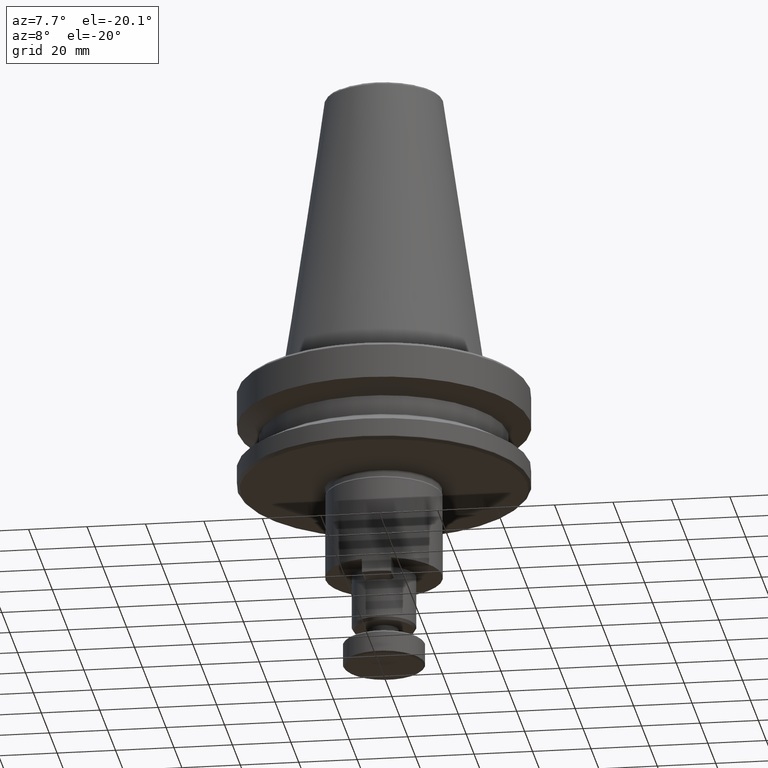
[diagram: clean part render]
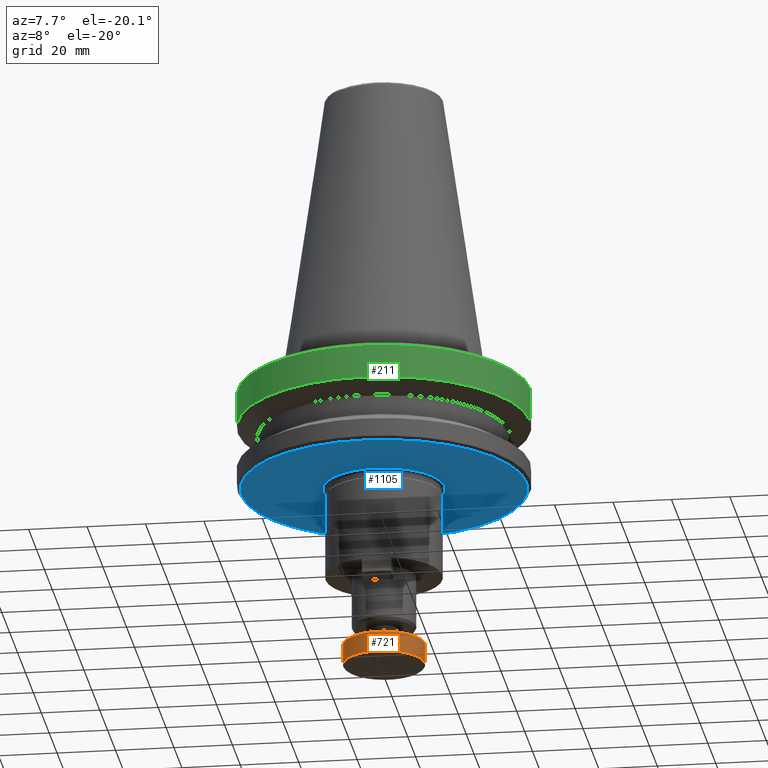
[diagram: same view with three faces highlighted in distinct colors, each labeled with its STEP entity id]
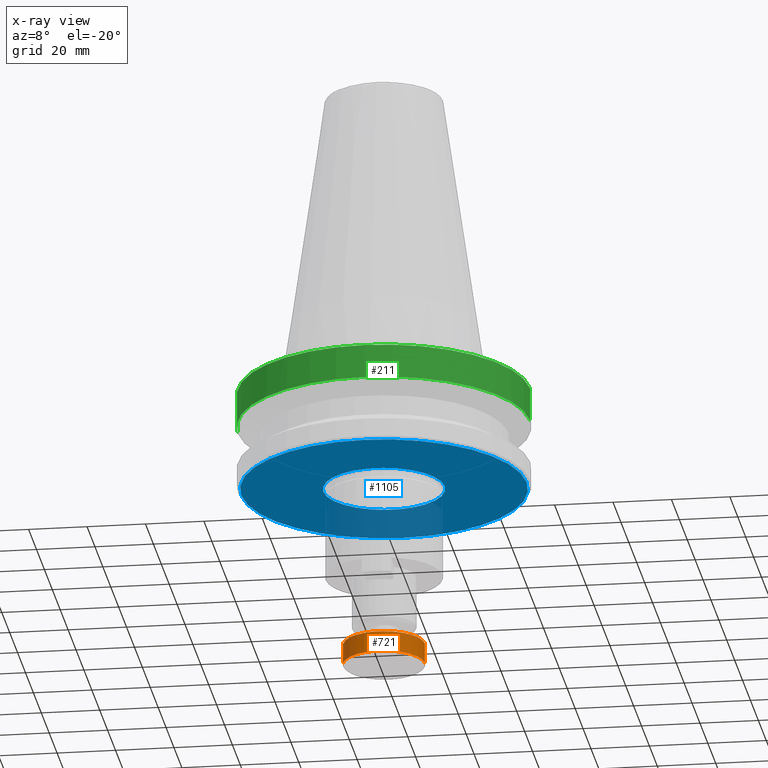
[diagram: x-ray of the same camera — body ghosted, the three highlighted faces saturated]
A machine part, auxiliary view with three faces highlighted in distinct colors.
The next image is the same camera in x-ray (body ghosted, the three faces saturated) — at least one of them is partly hidden behind the body in this view.
Their STEP definitions:

[orange] entity #721 — the highlighted cylindrical surface (partial cylindrical patch) has radius 14 mm, axis along (-0, -0, -1).
#22 = ORIENTED_EDGE ( 'NONE', *, *, #299, .T. ) ;
#195 = ORIENTED_EDGE ( 'NONE', *, *, #615, .F. ) ;
#243 = EDGE_CURVE ( 'NONE', #1642, #2509, #1406, .T. ) ;
#263 = AXIS2_PLACEMENT_3D ( 'NONE', #2195, #756, #975 ) ;
#299 = EDGE_CURVE ( 'NONE', #1814, #2509, #2480, .T. ) ;
#398 = VERTEX_POINT ( 'NONE', #2452 ) ;
#480 = CARTESIAN_POINT ( 'NONE',  ( -13.99999999999998400, 0.0000000000000000000, -101.5000000000000000 ) ) ;
#615 = EDGE_CURVE ( 'NONE', #398, #1642, #2276, .T. ) ;
#721 = ADVANCED_FACE ( 'NONE', ( #2118 ), #2347, .T. ) ;
#756 = DIRECTION ( 'NONE',  ( -0.0000000000000000000, -0.0000000000000000000, -1.000000000000000000 ) ) ;
#861 = DIRECTION ( 'NONE',  ( -1.000000000000000000, 0.0000000000000000000, 0.0000000000000000000 ) ) ;
#869 = DIRECTION ( 'NONE',  ( -0.0000000000000000000, -0.0000000000000000000, -1.000000000000000000 ) ) ;
#930 = DIRECTION ( 'NONE',  ( -0.0000000000000000000, -0.0000000000000000000, -1.000000000000000000 ) ) ;
#975 = DIRECTION ( 'NONE',  ( -1.000000000000000000, 0.0000000000000000000, 0.0000000000000000000 ) ) ;
#1037 = DIRECTION ( 'NONE',  ( -0.0000000000000000000, -0.0000000000000000000, -1.000000000000000000 ) ) ;
#1237 = CARTESIAN_POINT ( 'NONE',  ( 0.0000000000000000000, 0.0000000000000000000, -101.5000000000000000 ) ) ;
#1341 = CIRCLE ( 'NONE', #263, 13.99999999999996400 ) ;
#1365 = DIRECTION ( 'NONE',  ( -0.0000000000000000000, -0.0000000000000000000, -1.000000000000000000 ) ) ;
#1406 = CIRCLE ( 'NONE', #1673, 13.99999999999998400 ) ;
#1529 = AXIS2_PLACEMENT_3D ( 'NONE', #1899, #1365, #1672 ) ;
#1574 = CARTESIAN_POINT ( 'NONE',  ( -13.99999999999996400, 0.0000000000000000000, -94.50000000000000000 ) ) ;
#1642 = VERTEX_POINT ( 'NONE', #2054 ) ;
#1672 = DIRECTION ( 'NONE',  ( -1.000000000000000000, 0.0000000000000000000, 0.0000000000000000000 ) ) ;
#1673 = AXIS2_PLACEMENT_3D ( 'NONE', #1237, #1037, #861 ) ;
#1775 = ORIENTED_EDGE ( 'NONE', *, *, #243, .F. ) ;
#1814 = VERTEX_POINT ( 'NONE', #1574 ) ;
#1815 = CARTESIAN_POINT ( 'NONE',  ( 13.99999999999997500, 1.714505518806291300E-015, -137.0552534186821800 ) ) ;
#1842 = EDGE_CURVE ( 'NONE', #398, #1814, #1341, .T. ) ;
#1899 = CARTESIAN_POINT ( 'NONE',  ( 0.0000000000000000000, 0.0000000000000000000, -137.0552534186821800 ) ) ;
#2054 = CARTESIAN_POINT ( 'NONE',  ( 13.99999999999998200, 1.714505518806292500E-015, -101.5000000000000000 ) ) ;
#2118 = FACE_OUTER_BOUND ( 'NONE', #2275, .T. ) ;
#2142 = VECTOR ( 'NONE', #869, 1000.000000000000000 ) ;
#2195 = CARTESIAN_POINT ( 'NONE',  ( 0.0000000000000000000, 0.0000000000000000000, -94.50000000000000000 ) ) ;
#2220 = ORIENTED_EDGE ( 'NONE', *, *, #1842, .T. ) ;
#2248 = CARTESIAN_POINT ( 'NONE',  ( -13.99999999999997500, 0.0000000000000000000, -137.0552534186821800 ) ) ;
#2275 = EDGE_LOOP ( 'NONE', ( #195, #2220, #22, #1775 ) ) ;
#2276 = LINE ( 'NONE', #1815, #2142 ) ;
#2347 = CYLINDRICAL_SURFACE ( 'NONE', #1529, 13.99999999999997500 ) ;
#2370 = VECTOR ( 'NONE', #930, 1000.000000000000000 ) ;
#2452 = CARTESIAN_POINT ( 'NONE',  ( 13.99999999999996400, 1.714505518806289900E-015, -94.50000000000000000 ) ) ;
#2480 = LINE ( 'NONE', #2248, #2370 ) ;
#2509 = VERTEX_POINT ( 'NONE', #480 ) ;

[blue] entity #1105 — the highlighted planar face has unit normal (0, 0, -1).
#7 = AXIS2_PLACEMENT_3D ( 'NONE', #2450, #261, #1904 ) ;
#74 = VERTEX_POINT ( 'NONE', #2457 ) ;
#163 = CARTESIAN_POINT ( 'NONE',  ( -20.80000000000000400, 1.273632671113247700E-015, -38.00000000000000700 ) ) ;
#261 = DIRECTION ( 'NONE',  ( -0.0000000000000000000, 0.0000000000000000000, 1.000000000000000000 ) ) ;
#382 = EDGE_CURVE ( 'NONE', #839, #1263, #1146, .T. ) ;
#393 = AXIS2_PLACEMENT_3D ( 'NONE', #850, #2420, #577 ) ;
#519 = VERTEX_POINT ( 'NONE', #1840 ) ;
#523 = EDGE_CURVE ( 'NONE', #1263, #839, #1446, .T. ) ;
#577 = DIRECTION ( 'NONE',  ( -1.000000000000000000, 0.0000000000000000000, -0.0000000000000000000 ) ) ;
#720 = CARTESIAN_POINT ( 'NONE',  ( 20.80000000000000400, 3.820898013339743400E-015, -38.00000000000000700 ) ) ;
#839 = VERTEX_POINT ( 'NONE', #720 ) ;
#850 = CARTESIAN_POINT ( 'NONE',  ( 0.0000000000000000000, 5.399440345235984600E-015, -38.00000000000000700 ) ) ;
#903 = AXIS2_PLACEMENT_3D ( 'NONE', #2338, #1514, #1908 ) ;
#909 = ORIENTED_EDGE ( 'NONE', *, *, #1587, .F. ) ;
#933 = EDGE_LOOP ( 'NONE', ( #909, #1189 ) ) ;
#1018 = AXIS2_PLACEMENT_3D ( 'NONE', #2322, #2092, #1809 ) ;
#1105 = ADVANCED_FACE ( 'NONE', ( #2156, #2288 ), #1802, .T. ) ;
#1146 = CIRCLE ( 'NONE', #1891, 20.80000000000000400 ) ;
#1189 = ORIENTED_EDGE ( 'NONE', *, *, #1689, .F. ) ;
#1231 = CARTESIAN_POINT ( 'NONE',  ( 0.0000000000000000000, 1.273632671113247700E-015, -38.00000000000000700 ) ) ;
#1263 = VERTEX_POINT ( 'NONE', #163 ) ;
#1446 = CIRCLE ( 'NONE', #1018, 20.80000000000000400 ) ;
#1514 = DIRECTION ( 'NONE',  ( -0.0000000000000000000, 0.0000000000000000000, 1.000000000000000000 ) ) ;
#1520 = DIRECTION ( 'NONE',  ( -0.0000000000000000000, -0.0000000000000000000, 1.000000000000000000 ) ) ;
#1587 = EDGE_CURVE ( 'NONE', #519, #74, #2106, .T. ) ;
#1613 = ORIENTED_EDGE ( 'NONE', *, *, #382, .T. ) ;
#1689 = EDGE_CURVE ( 'NONE', #74, #519, #2351, .T. ) ;
#1778 = DIRECTION ( 'NONE',  ( -1.000000000000000000, 0.0000000000000000000, 0.0000000000000000000 ) ) ;
#1802 = PLANE ( 'NONE',  #393 ) ;
#1808 = EDGE_LOOP ( 'NONE', ( #2247, #1613 ) ) ;
#1809 = DIRECTION ( 'NONE',  ( -1.000000000000000000, 0.0000000000000000000, 0.0000000000000000000 ) ) ;
#1840 = CARTESIAN_POINT ( 'NONE',  ( 48.83431457505076200, -3.007558472769253000E-015, -38.00000000000000700 ) ) ;
#1891 = AXIS2_PLACEMENT_3D ( 'NONE', #1231, #1520, #1778 ) ;
#1904 = DIRECTION ( 'NONE',  ( 1.000000000000000000, 0.0000000000000000000, 0.0000000000000000000 ) ) ;
#1908 = DIRECTION ( 'NONE',  ( 1.000000000000000000, 0.0000000000000000000, 0.0000000000000000000 ) ) ;
#2092 = DIRECTION ( 'NONE',  ( -0.0000000000000000000, -0.0000000000000000000, 1.000000000000000000 ) ) ;
#2106 = CIRCLE ( 'NONE', #7, 48.83431457505076200 ) ;
#2156 = FACE_BOUND ( 'NONE', #1808, .T. ) ;
#2247 = ORIENTED_EDGE ( 'NONE', *, *, #523, .T. ) ;
#2288 = FACE_OUTER_BOUND ( 'NONE', #933, .T. ) ;
#2322 = CARTESIAN_POINT ( 'NONE',  ( 0.0000000000000000000, 1.273632671113247700E-015, -38.00000000000000700 ) ) ;
#2338 = CARTESIAN_POINT ( 'NONE',  ( 0.0000000000000000000, -3.007558472769253000E-015, -38.00000000000000700 ) ) ;
#2351 = CIRCLE ( 'NONE', #903, 48.83431457505076200 ) ;
#2420 = DIRECTION ( 'NONE',  ( 0.0000000000000000000, 0.0000000000000000000, -1.000000000000000000 ) ) ;
#2450 = CARTESIAN_POINT ( 'NONE',  ( 0.0000000000000000000, -3.007558472769253000E-015, -38.00000000000000700 ) ) ;
#2457 = CARTESIAN_POINT ( 'NONE',  ( -48.83431457505076200, 2.990239351644541500E-015, -38.00000000000000700 ) ) ;

[green] entity #211 — the highlighted cylindrical surface (partial cylindrical patch) has radius 50 mm, axis along (-0, -0, 1).
#117 = ORIENTED_EDGE ( 'NONE', *, *, #395, .F. ) ;
#211 = ADVANCED_FACE ( 'NONE', ( #2481 ), #983, .T. ) ;
#275 = CIRCLE ( 'NONE', #767, 50.00000000000000000 ) ;
#395 = EDGE_CURVE ( 'NONE', #573, #2037, #1081, .T. ) ;
#422 = LINE ( 'NONE', #2433, #2521 ) ;
#572 = DIRECTION ( 'NONE',  ( 0.0000000000000000000, -0.0000000000000000000, 1.000000000000000000 ) ) ;
#573 = VERTEX_POINT ( 'NONE', #2264 ) ;
#604 = ORIENTED_EDGE ( 'NONE', *, *, #2472, .F. ) ;
#688 = VERTEX_POINT ( 'NONE', #1790 ) ;
#761 = DIRECTION ( 'NONE',  ( -0.0000000000000000000, 0.0000000000000000000, -1.000000000000000000 ) ) ;
#767 = AXIS2_PLACEMENT_3D ( 'NONE', #1259, #761, #2421 ) ;
#789 = DIRECTION ( 'NONE',  ( 1.000000000000000000, 0.0000000000000000000, 0.0000000000000000000 ) ) ;
#834 = CARTESIAN_POINT ( 'NONE',  ( -1.734723475976807100E-015, -3.469446951953614200E-015, -4.165685424949241900 ) ) ;
#951 = CARTESIAN_POINT ( 'NONE',  ( -50.00000000000001400, 6.123233995736767700E-015, -4.165685424949241900 ) ) ;
#983 = CYLINDRICAL_SURFACE ( 'NONE', #1806, 50.00000000000000000 ) ;
#1081 = LINE ( 'NONE', #1355, #1573 ) ;
#1096 = DIRECTION ( 'NONE',  ( 1.000000000000000000, 0.0000000000000000000, 0.0000000000000000000 ) ) ;
#1178 = DIRECTION ( 'NONE',  ( -0.0000000000000000000, -0.0000000000000000000, 1.000000000000000000 ) ) ;
#1236 = CARTESIAN_POINT ( 'NONE',  ( 0.0000000000000000000, 0.0000000000000000000, 137.4224889997720400 ) ) ;
#1250 = VERTEX_POINT ( 'NONE', #1497 ) ;
#1259 = CARTESIAN_POINT ( 'NONE',  ( 0.0000000000000000000, 0.0000000000000000000, -15.70022000322676600 ) ) ;
#1305 = EDGE_CURVE ( 'NONE', #688, #1250, #422, .T. ) ;
#1355 = CARTESIAN_POINT ( 'NONE',  ( -50.00000000000000000, 6.123233995736766100E-015, 137.4224889997720400 ) ) ;
#1489 = DIRECTION ( 'NONE',  ( -0.0000000000000000000, -0.0000000000000000000, 1.000000000000000000 ) ) ;
#1497 = CARTESIAN_POINT ( 'NONE',  ( 50.00000000000001400, 7.703719777548943400E-031, -4.165685424949241900 ) ) ;
#1573 = VECTOR ( 'NONE', #1489, 1000.000000000000000 ) ;
#1626 = CIRCLE ( 'NONE', #1985, 50.00000000000001400 ) ;
#1666 = EDGE_CURVE ( 'NONE', #688, #573, #275, .T. ) ;
#1790 = CARTESIAN_POINT ( 'NONE',  ( 50.00000000000000000, 0.0000000000000000000, -15.70022000322676600 ) ) ;
#1806 = AXIS2_PLACEMENT_3D ( 'NONE', #1236, #2213, #1096 ) ;
#1856 = ORIENTED_EDGE ( 'NONE', *, *, #1305, .T. ) ;
#1933 = ORIENTED_EDGE ( 'NONE', *, *, #1666, .F. ) ;
#1985 = AXIS2_PLACEMENT_3D ( 'NONE', #834, #572, #789 ) ;
#2037 = VERTEX_POINT ( 'NONE', #951 ) ;
#2213 = DIRECTION ( 'NONE',  ( -0.0000000000000000000, -0.0000000000000000000, 1.000000000000000000 ) ) ;
#2264 = CARTESIAN_POINT ( 'NONE',  ( -50.00000000000000000, 6.123233995736766100E-015, -15.70022000322676600 ) ) ;
#2330 = EDGE_LOOP ( 'NONE', ( #117, #1933, #1856, #604 ) ) ;
#2421 = DIRECTION ( 'NONE',  ( 1.000000000000000000, 0.0000000000000000000, 0.0000000000000000000 ) ) ;
#2433 = CARTESIAN_POINT ( 'NONE',  ( 50.00000000000000000, 0.0000000000000000000, 137.4224889997720400 ) ) ;
#2472 = EDGE_CURVE ( 'NONE', #2037, #1250, #1626, .T. ) ;
#2481 = FACE_OUTER_BOUND ( 'NONE', #2330, .T. ) ;
#2521 = VECTOR ( 'NONE', #1178, 1000.000000000000000 ) ;